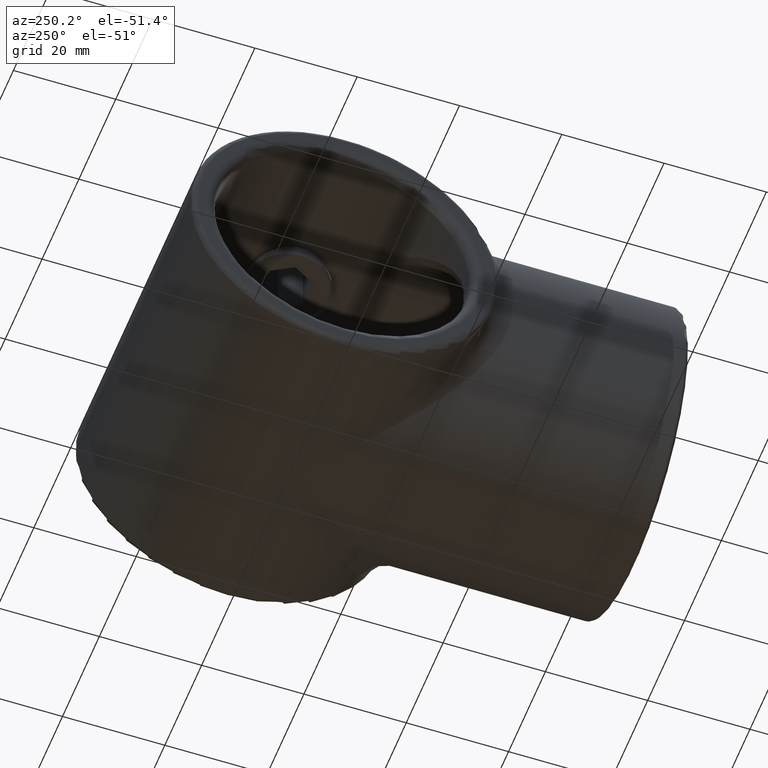
[diagram: clean part render]
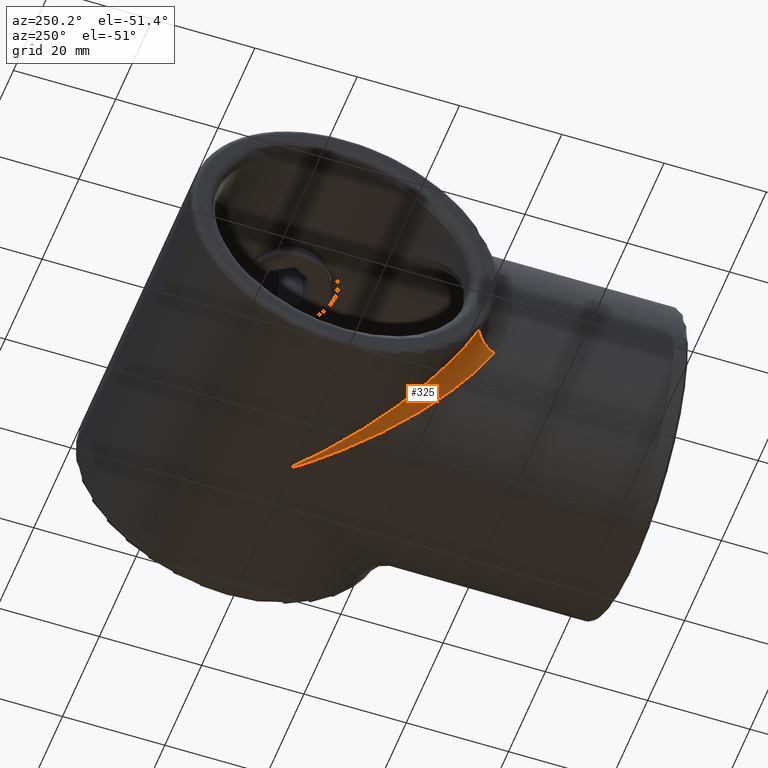
[diagram: same view with one face highlighted and labeled with its STEP entity id]
A machine part, auxiliary view. The second image highlights one B-rep face of the part: STEP entity #325.
In plain terms, the highlighted face is a freeform B-spline surface patch.
Its self-contained STEP definition (entity closure, byte-faithful):
#217 = CARTESIAN_POINT ( 'NONE',  ( -30.99999999999997868, 41.42857142857145192, -13.92692297937595036 ) ) ;
#228 = EDGE_LOOP ( 'NONE', ( #3316, #2867, #3560 ) ) ;
#245 = CARTESIAN_POINT ( 'NONE',  ( -20.77450875049881418, 50.19327821386007571, -24.18202561002568274 ) ) ;
#325 = ADVANCED_FACE ( 'NONE', ( #2671 ), #1421, .F. ) ;
#421 = CARTESIAN_POINT ( 'NONE',  ( -11.45385277020925230, 54.63717176808922460, -29.99999999999997868 ) ) ;
#487 = CARTESIAN_POINT ( 'NONE',  ( 5.970153145843344783E-15, 68.00000000000000000, -29.99999999999998934 ) ) ;
#514 = CARTESIAN_POINT ( 'NONE',  ( -5.439904717885952756, 61.65344449580589981, -29.62779522934931009 ) ) ;
#549 = CARTESIAN_POINT ( 'NONE',  ( -24.40784206466846129, 47.07899251600282042, -21.54439948635027591 ) ) ;
#558 = CARTESIAN_POINT ( 'NONE',  ( -24.75027200424878160, 43.24972799574496207, -17.09812601704329893 ) ) ;
#579 = CARTESIAN_POINT ( 'NONE',  ( -26.57142857142857650, 37.00000000000000711, -13.92692297937590418 ) ) ;
#586 = CARTESIAN_POINT ( 'NONE',  ( -26.19918944548746964, 41.80081055451900340, -14.78688535479886568 ) ) ;
#597 = CARTESIAN_POINT ( 'NONE',  ( -21.13365676307876129, 46.86634323692479143, -21.40148481570609462 ) ) ;
#824 = CARTESIAN_POINT ( 'NONE',  ( -14.25388613875925081, 53.74611386125489076, -26.57178981587813738 ) ) ;
#830 = CARTESIAN_POINT ( 'NONE',  ( -24.79656401425161860, 46.74580227349861872, -24.07176400441838382 ) ) ;
#837 = CARTESIAN_POINT ( 'NONE',  ( -11.55442199141611859, 56.44557800854907015, -27.85837179371385020 ) ) ;
#907 = CARTESIAN_POINT ( 'NONE',  ( -30.26341052392410802, 42.05993383663201968, -15.13151075180133986 ) ) ;
#950 = CARTESIAN_POINT ( 'NONE',  ( -31.00000000000000000, 36.99999999999999289, -16.24807680927189679 ) ) ;
#1056 = CIRCLE ( 'NONE', #1293, 4.999999999999999112 ) ;
#1142 = CARTESIAN_POINT ( 'NONE',  ( -13.19987254161862822, 52.60014870144618016, -27.07696767322384801 ) ) ;
#1183 = CARTESIAN_POINT ( 'NONE',  ( -25.22664773172293806, 38.56891097965294790, -16.29312577722347299 ) ) ;
#1249 = DIRECTION ( 'NONE',  ( -0.8857142857142857872, 0.000000000000000000, -0.4642307659791977126 ) ) ;
#1293 = AXIS2_PLACEMENT_3D ( 'NONE', #950, #3698, #1249 ) ;
#1420 = CARTESIAN_POINT ( 'NONE',  ( -3.173554324094417289, 65.27981057942001542, -29.99999999999998934 ) ) ;
#1421 =( BOUNDED_SURFACE ( )  B_SPLINE_SURFACE ( 3, 2, ( 
 ( #3342, #487, #3693 ),
 ( #1420, #3074, #2090 ),
 ( #1778, #2106, #514 ),
 ( #3357, #837, #3394 ),
 ( #2735, #824, #1142 ),
 ( #3059, #2452, #3464 ),
 ( #245, #3723, #1551 ),
 ( #4042, #597, #1822 ),
 ( #549, #2177, #2164 ),
 ( #3084, #2766, #1791 ),
 ( #2506, #558, #4017 ),
 ( #2479, #586, #1183 ),
 ( #907, #3116, #3133 ),
 ( #217, #3143, #2791 ) ),
 .UNSPECIFIED., .F., .F., .T. ) 
 B_SPLINE_SURFACE_WITH_KNOTS ( ( 4, 2, 2, 2, 2, 2, 4 ),
 ( 3, 3 ),
 ( 4.712388980384689674, 4.984396581251980152, 5.256404182119271518, 5.392407982552917645, 5.528411782986562883, 5.664415583420208122, 5.800419383853853361 ),
 ( 0.000000000000000000, 1.000000000000000000 ),
 .UNSPECIFIED. ) 
 GEOMETRIC_REPRESENTATION_ITEM ( )  RATIONAL_B_SPLINE_SURFACE ( (
 ( 1.000000000000000000, 1.000000000000000000, 1.000000000000000000),
 ( 1.000000000000000000, 1.000000000000000000, 1.000000000000000000),
 ( 1.000000000000000000, 0.9937385147164465860, 1.000000000000000000),
 ( 1.000000000000000000, 0.9698391927530841672, 1.000000000000000000),
 ( 1.000000000000000000, 0.9521956779652090974, 1.000000000000000000),
 ( 1.000000000000000000, 0.9198354709800522500, 1.000000000000000000),
 ( 1.000000000000000000, 0.9080854604140244923, 1.000000000000000000),
 ( 1.000000000000000000, 0.8833389735616200555, 1.000000000000000000),
 ( 1.000000000000000000, 0.8703425929362569313, 1.000000000000000000),
 ( 1.000000000000000000, 0.8439470588599295997, 1.000000000000000000),
 ( 1.000000000000000000, 0.8305487562398767842, 1.000000000000000000),
 ( 1.000000000000000000, 0.8043449864701703866, 1.000000000000000000),
 ( 1.000000000000000000, 0.7915428547518558178, 1.000000000000000000),
 ( 1.000000000000000000, 0.7795864942652719343, 1.000000000000000000) ) ) 
 REPRESENTATION_ITEM ( '' )  SURFACE ( )  );
#1551 = CARTESIAN_POINT ( 'NONE',  ( -17.80672178613993140, 47.22549124950468524, -24.18202561002568274 ) ) ;
#1649 = CARTESIAN_POINT ( 'NONE',  ( -31.00000000000000000, 41.42857142857142350, -13.92692297937591128 ) ) ;
#1708 = VERTEX_POINT ( 'NONE', #3915 ) ;
#1771 = EDGE_CURVE ( 'NONE', #3765, #1708, #1800, .T. ) ;
#1778 = CARTESIAN_POINT ( 'NONE',  ( -6.346555504201748299, 62.56009528212824478, -29.62779522935326781 ) ) ;
#1791 = CARTESIAN_POINT ( 'NONE',  ( -22.78459606451641406, 41.41797125806228763, -19.56302342557833995 ) ) ;
#1800 =( BOUNDED_CURVE ( )  B_SPLINE_CURVE ( 3, ( #2011, #2985, #421, #3918 ),
 .UNSPECIFIED., .F., .T. ) 
 B_SPLINE_CURVE_WITH_KNOTS ( ( 4, 4 ),
 ( 0.4827659233257331484, 1.570796326794896558 ),
 .UNSPECIFIED. ) 
 CURVE ( )  GEOMETRIC_REPRESENTATION_ITEM ( )  RATIONAL_B_SPLINE_CURVE ( ( 1.000000000000000000, 0.9037582755141988500, 0.9037582755141988500, 1.000000000000000000 ) ) 
 REPRESENTATION_ITEM ( '' )  );
#1822 = CARTESIAN_POINT ( 'NONE',  ( -19.92174618221351423, 44.75796278741631085, -22.47162060075751810 ) ) ;
#1949 = EDGE_CURVE ( 'NONE', #1708, #4007, #2991, .T. ) ;
#2011 = CARTESIAN_POINT ( 'NONE',  ( -26.57142857142857650, 37.00000000000000711, -13.92692297937590418 ) ) ;
#2044 = EDGE_CURVE ( 'NONE', #4007, #3765, #1056, .T. ) ;
#2090 = CARTESIAN_POINT ( 'NONE',  ( -2.720189420628404520, 64.82644567595048102, -29.99999999999998934 ) ) ;
#2094 = CARTESIAN_POINT ( 'NONE',  ( -31.00000000000000000, 41.42857142857142350, -13.92692297937591128 ) ) ;
#2106 = CARTESIAN_POINT ( 'NONE',  ( -5.927048425363698136, 62.07295157467029867, -29.55434049151594067 ) ) ;
#2164 = CARTESIAN_POINT ( 'NONE',  ( -20.92100748400031307, 43.59215793533488181, -21.54439948634694346 ) ) ;
#2177 = CARTESIAN_POINT ( 'NONE',  ( -22.12492248448551635, 45.87507751553748392, -20.37505668750911880 ) ) ;
#2398 = CARTESIAN_POINT ( 'NONE',  ( 0.000000000000000000, 68.00000000000000000, -30.00000000000000000 ) ) ;
#2452 = CARTESIAN_POINT ( 'NONE',  ( -17.84633644040196643, 50.15366355959069722, -24.19779143707168956 ) ) ;
#2479 = CARTESIAN_POINT ( 'NONE',  ( -29.43108902034387953, 42.77335226827814552, -16.29312577722497224 ) ) ;
#2506 = CARTESIAN_POINT ( 'NONE',  ( -27.59039818067936167, 44.35108727370195680, -18.50887976720360939 ) ) ;
#2671 = FACE_OUTER_BOUND ( 'NONE', #228, .T. ) ;
#2735 = CARTESIAN_POINT ( 'NONE',  ( -15.39985129855382517, 54.80012745838668309, -27.07696767322705611 ) ) ;
#2766 = CARTESIAN_POINT ( 'NONE',  ( -23.93550066748554173, 44.06449933249074036, -18.22524985330908365 ) ) ;
#2791 = CARTESIAN_POINT ( 'NONE',  ( -26.57142857142855519, 37.00000000000002842, -13.92692297937595036 ) ) ;
#2867 = ORIENTED_EDGE ( 'NONE', *, *, #1771, .F. ) ;
#2985 = CARTESIAN_POINT ( 'NONE',  ( -21.25419772650139194, 43.20343598574839206, -24.07176400441837316 ) ) ;
#2991 =( BOUNDED_CURVE ( )  B_SPLINE_CURVE ( 3, ( #2398, #4010, #830, #2094 ),
 .UNSPECIFIED., .F., .T. ) 
 B_SPLINE_CURVE_WITH_KNOTS ( ( 4, 4 ),
 ( 4.712388980384689674, 5.800419383853853361 ),
 .UNSPECIFIED. ) 
 CURVE ( )  GEOMETRIC_REPRESENTATION_ITEM ( )  RATIONAL_B_SPLINE_CURVE ( ( 1.000000000000000000, 0.9037582755141988500, 0.9037582755141988500, 1.000000000000000000 ) ) 
 REPRESENTATION_ITEM ( '' )  );
#3059 = CARTESIAN_POINT ( 'NONE',  ( -19.47279919816738314, 51.30902925871155418, -24.96519976059489565 ) ) ;
#3074 = CARTESIAN_POINT ( 'NONE',  ( -2.946878056885181341, 65.05312194309721008, -30.00000000002334488 ) ) ;
#3084 = CARTESIAN_POINT ( 'NONE',  ( -26.58202874193438703, 45.21540393548045955, -19.56302342557500751 ) ) ;
#3116 = CARTESIAN_POINT ( 'NONE',  ( -26.82654430170168069, 41.17345569829234364, -13.60283485464017694 ) ) ;
#3133 = CARTESIAN_POINT ( 'NONE',  ( -25.94006616336451287, 37.73658947606703151, -15.13151075180796568 ) ) ;
#3143 = CARTESIAN_POINT ( 'NONE',  ( -27.35661517797176856, 40.64338482202822433, -12.42885123288162497 ) ) ;
#3316 = ORIENTED_EDGE ( 'NONE', *, *, #1949, .F. ) ;
#3342 = CARTESIAN_POINT ( 'NONE',  ( 6.429395695523602378E-15, 68.00000000000000000, -29.99999999999998934 ) ) ;
#3357 = CARTESIAN_POINT ( 'NONE',  ( -12.46004805639148039, 57.31995880879187411, -28.16621262516686386 ) ) ;
#3394 = CARTESIAN_POINT ( 'NONE',  ( -10.68004119119395767, 55.53995194360088306, -28.16621262517081803 ) ) ;
#3464 = CARTESIAN_POINT ( 'NONE',  ( -16.69097074128579550, 48.52720080183262041, -24.96519976059649792 ) ) ;
#3560 = ORIENTED_EDGE ( 'NONE', *, *, #2044, .F. ) ;
#3693 = CARTESIAN_POINT ( 'NONE',  ( 5.510910596163087189E-15, 68.00000000000000000, -29.99999999999998934 ) ) ;
#3698 = DIRECTION ( 'NONE',  ( 0.4210703046731052446, 0.4210703046731042454, -0.8033676599446840649 ) ) ;
#3723 = CARTESIAN_POINT ( 'NONE',  ( -18.99367026170520134, 49.00632973829136318, -23.30976675017640787 ) ) ;
#3765 = VERTEX_POINT ( 'NONE', #579 ) ;
#3915 = CARTESIAN_POINT ( 'NONE',  ( 0.000000000000000000, 68.00000000000000000, -30.00000000000000000 ) ) ;
#3918 = CARTESIAN_POINT ( 'NONE',  ( 0.000000000000000000, 68.00000000000000000, -30.00000000000000000 ) ) ;
#4007 = VERTEX_POINT ( 'NONE', #1649 ) ;
#4010 = CARTESIAN_POINT ( 'NONE',  ( -13.36282823191078606, 56.54614722979074770, -29.99999999999998579 ) ) ;
#4017 = CARTESIAN_POINT ( 'NONE',  ( -23.64891272629698094, 40.40960181932382511, -18.50887976720511219 ) ) ;
#4042 = CARTESIAN_POINT ( 'NONE',  ( -23.24203721258021105, 48.07825381778649643, -22.47162060075751810 ) ) ;